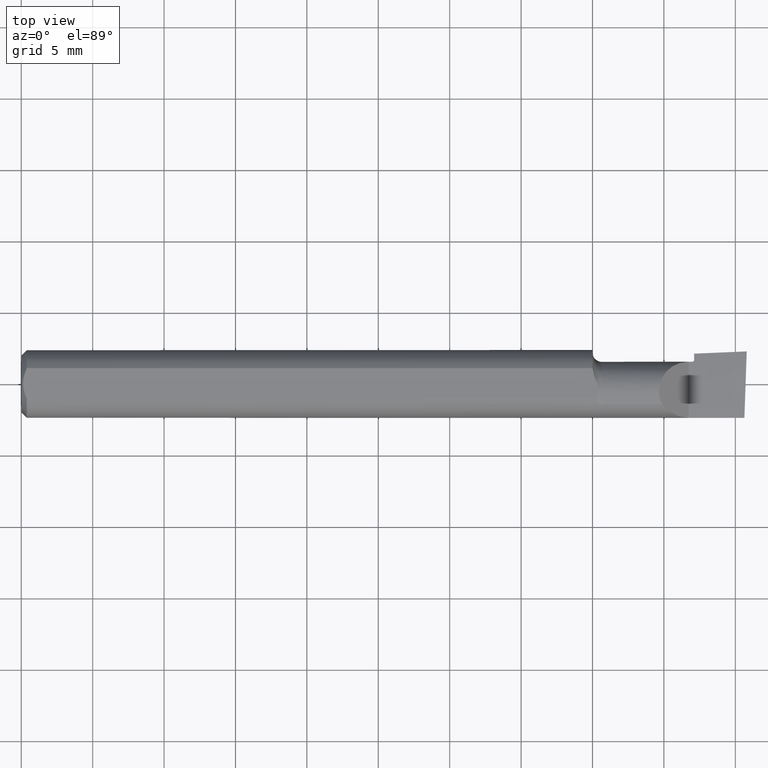
[diagram: clean part render]
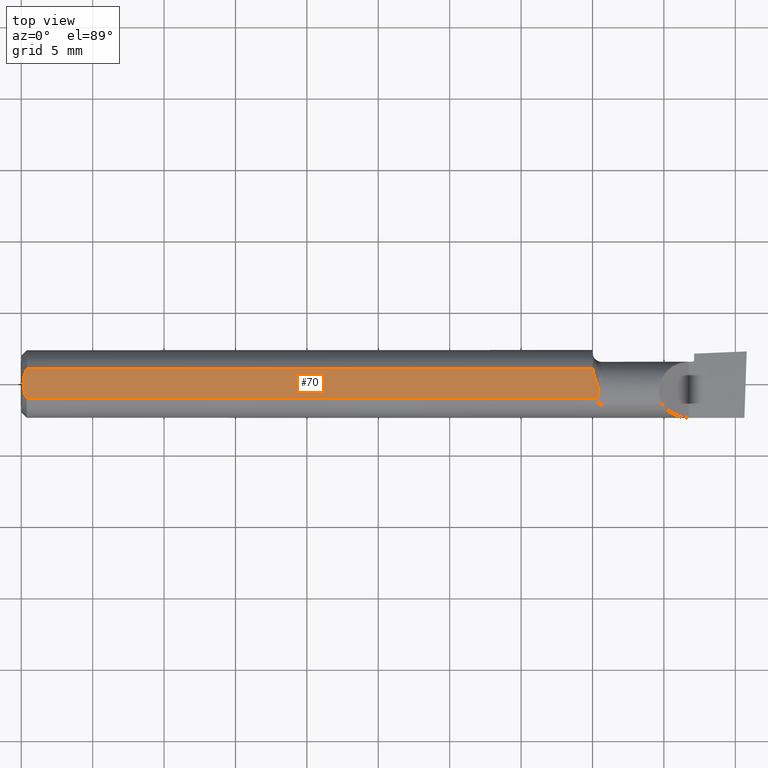
[diagram: same view with one face highlighted and labeled with its STEP entity id]
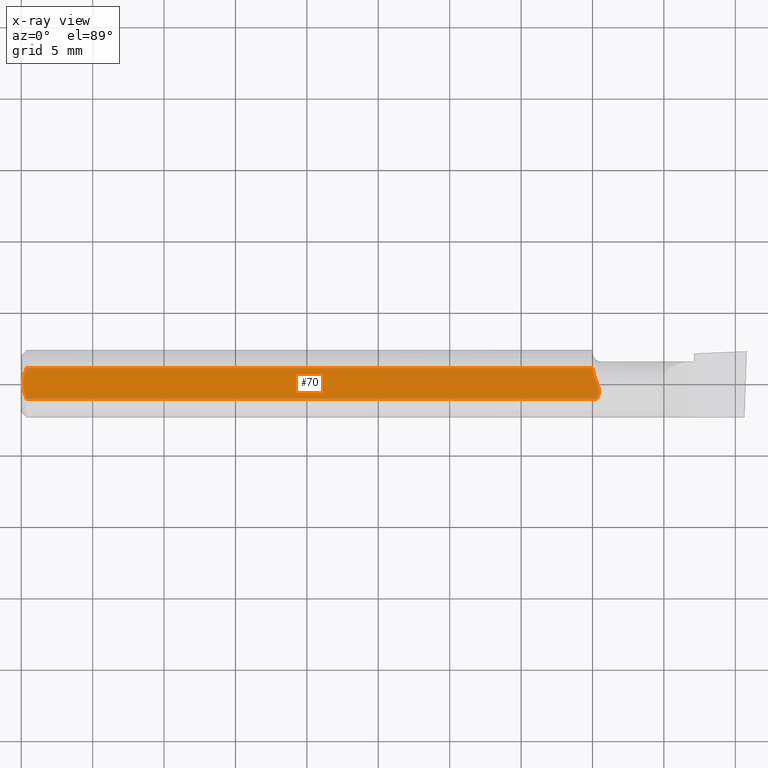
[diagram: x-ray of the same camera — body ghosted, the highlighted face saturated]
A machine part, top view. The second image highlights one B-rep face of the part: STEP entity #70.
The next image is the same camera in x-ray: the body ghosted, the highlighted face saturated — about 0% of this face is hidden behind the body in this view.
In plain terms, the highlighted planar face has unit normal (-0, 0, -1).
Its self-contained STEP definition (entity closure, byte-faithful):
#31 = CARTESIAN_POINT ( 'NONE',  ( 1.575142176526518778, 0.04209513036078768589, 0.08360000000000000764 ) ) ;
#53 = B_SPLINE_CURVE_WITH_KNOTS ( 'NONE', 3,
 ( #63, #598, #65, #445, #589, #73 ),
 .UNSPECIFIED., .F., .F.,
 ( 4, 2, 4 ),
 ( 0.001498230153270218050, 0.002046825164355170045, 0.002595420175440121824 ),
 .UNSPECIFIED. ) ;
#54 = DIRECTION ( 'NONE',  ( 1.000000000000000000, 0.000000000000000000, 0.000000000000000000 ) ) ;
#63 = CARTESIAN_POINT ( 'NONE',  ( 0.01500000000000024925, 0.04209513035969833505, 0.08360000000000004927 ) ) ;
#65 = CARTESIAN_POINT ( 'NONE',  ( 0.009483687754784102600, 0.02856776309113260789, 0.08360000000000000764 ) ) ;
#70 = ADVANCED_FACE ( 'NONE', ( #266 ), #351, .F. ) ;
#73 = CARTESIAN_POINT ( 'NONE',  ( 0.005000000000000217812, 1.023804700982173805E-17, 0.08360000000000000764 ) ) ;
#78 = CARTESIAN_POINT ( 'NONE',  ( 1.586717443774290803, -0.04209513035984616125, 0.08360000000000000764 ) ) ;
#98 = ORIENTED_EDGE ( 'NONE', *, *, #539, .T. ) ;
#110 = CARTESIAN_POINT ( 'NONE',  ( 0.01499999999997154825, -0.04209513035984145668, 0.08360000000000000764 ) ) ;
#133 = CARTESIAN_POINT ( 'NONE',  ( 0.01500000000000024925, 0.04209513035969833505, 0.08360000000000004927 ) ) ;
#147 = VERTEX_POINT ( 'NONE', #420 ) ;
#162 = VECTOR ( 'NONE', #54, 39.37007874015748143 ) ;
#174 = CARTESIAN_POINT ( 'NONE',  ( 1.592368946907285476, -0.02449212022604190311, 0.08360000000000003539 ) ) ;
#196 = VERTEX_POINT ( 'NONE', #133 ) ;
#199 = ORIENTED_EDGE ( 'NONE', *, *, #385, .F. ) ;
#217 = DIRECTION ( 'NONE',  ( -1.000000000000000000, 0.000000000000000000, 0.000000000000000000 ) ) ;
#219 = B_SPLINE_CURVE_WITH_KNOTS ( 'NONE', 3,
 ( #427, #581, #286, #482, #628, #332 ),
 .UNSPECIFIED., .F., .F.,
 ( 4, 2, 4 ),
 ( 0.002595420175440121824, 0.003143963582281870776, 0.003692506989123619295 ),
 .UNSPECIFIED. ) ;
#227 = CARTESIAN_POINT ( 'NONE',  ( 1.581312814023121849, 0.01393385481374755965, 0.08360000000000000764 ) ) ;
#244 = VERTEX_POINT ( 'NONE', #465 ) ;
#266 = FACE_OUTER_BOUND ( 'NONE', #483, .T. ) ;
#276 = VECTOR ( 'NONE', #292, 39.37007874015748143 ) ;
#280 = EDGE_CURVE ( 'NONE', #457, #495, #509, .T. ) ;
#286 = CARTESIAN_POINT ( 'NONE',  ( 0.005981945000908654025, -0.01453549720624409958, 0.08360000000000000764 ) ) ;
#290 = LINE ( 'NONE', #336, #162 ) ;
#292 = DIRECTION ( 'NONE',  ( -1.000000000000000000, -0.000000000000000000, -0.000000000000000000 ) ) ;
#303 = DIRECTION ( 'NONE',  ( -0.000000000000000000, 0.000000000000000000, -1.000000000000000000 ) ) ;
#332 = CARTESIAN_POINT ( 'NONE',  ( 0.01499999999997154825, -0.04209513035984145668, 0.08360000000000000764 ) ) ;
#336 = CARTESIAN_POINT ( 'NONE',  ( 2.000000000000000000, 0.04209513035969836975, 0.08360000000000000764 ) ) ;
#351 = PLANE ( 'NONE',  #392 ) ;
#363 = EDGE_CURVE ( 'NONE', #147, #495, #219, .T. ) ;
#385 = EDGE_CURVE ( 'NONE', #196, #244, #290, .T. ) ;
#392 = AXIS2_PLACEMENT_3D ( 'NONE', #544, #303, #217 ) ;
#415 = CARTESIAN_POINT ( 'NONE',  ( 1.589277391620196545, -0.006451795069408293101, 0.08360000000000003539 ) ) ;
#420 = CARTESIAN_POINT ( 'NONE',  ( 0.005000000000000217812, 1.023804700982173805E-17, 0.08360000000000000764 ) ) ;
#427 = CARTESIAN_POINT ( 'NONE',  ( 0.005000000000000217812, 1.023804700982173805E-17, 0.08360000000000000764 ) ) ;
#428 = ORIENTED_EDGE ( 'NONE', *, *, #280, .F. ) ;
#445 = CARTESIAN_POINT ( 'NONE',  ( 0.005976064474242861677, 0.01450833282979354169, 0.08359999999999997988 ) ) ;
#457 = VERTEX_POINT ( 'NONE', #591 ) ;
#458 = CARTESIAN_POINT ( 'NONE',  ( 1.591579426143966858, -0.02814343689618108157, 0.08360000000000000764 ) ) ;
#464 = CARTESIAN_POINT ( 'NONE',  ( 1.589402513546925189, -0.03521055180197243256, 0.08360000000000003539 ) ) ;
#465 = CARTESIAN_POINT ( 'NONE',  ( 1.575142176526518778, 0.04209513036078768589, 0.08360000000000000764 ) ) ;
#477 = ORIENTED_EDGE ( 'NONE', *, *, #363, .T. ) ;
#482 = CARTESIAN_POINT ( 'NONE',  ( 0.009483685532750397995, -0.02856415438847177343, 0.08359999999999997988 ) ) ;
#483 = EDGE_LOOP ( 'NONE', ( #612, #199, #98, #477, #428 ) ) ;
#495 = VERTEX_POINT ( 'NONE', #110 ) ;
#509 = LINE ( 'NONE', #528, #276 ) ;
#514 = CARTESIAN_POINT ( 'NONE',  ( 1.591487215486386830, -0.01349519822107818866, 0.08360000000000003539 ) ) ;
#528 = CARTESIAN_POINT ( 'NONE',  ( 2.000000000000000000, -0.04209513035969836975, 0.08360000000000000764 ) ) ;
#539 = EDGE_CURVE ( 'NONE', #196, #147, #53, .T. ) ;
#544 = CARTESIAN_POINT ( 'NONE',  ( 0.000000000000000000, 0.04793338999999999933, 0.08360000000000000764 ) ) ;
#556 = CARTESIAN_POINT ( 'NONE',  ( 1.587908078088387631, -0.002953318044166694089, 0.08360000000000003539 ) ) ;
#568 = CARTESIAN_POINT ( 'NONE',  ( 1.588060328464885096, -0.03865296673493586604, 0.08360000000000000764 ) ) ;
#569 = EDGE_CURVE ( 'NONE', #244, #457, #627, .T. ) ;
#581 = CARTESIAN_POINT ( 'NONE',  ( 0.005000000000000208271, -0.007340015043780888718, 0.08360000000000000764 ) ) ;
#589 = CARTESIAN_POINT ( 'NONE',  ( 0.005000000000000212608, 0.007340705555993274310, 0.08360000000000000764 ) ) ;
#591 = CARTESIAN_POINT ( 'NONE',  ( 1.586717443774290803, -0.04209513035984616125, 0.08360000000000000764 ) ) ;
#598 = CARTESIAN_POINT ( 'NONE',  ( 0.01203159747439047286, 0.03549478314559913888, 0.08360000000000000764 ) ) ;
#605 = CARTESIAN_POINT ( 'NONE',  ( 1.576075746555042123, 0.02762621477535017953, 0.08360000000000000764 ) ) ;
#609 = CARTESIAN_POINT ( 'NONE',  ( 1.592325187580201584, -0.01718587150066108390, 0.08360000000000000764 ) ) ;
#612 = ORIENTED_EDGE ( 'NONE', *, *, #569, .F. ) ;
#627 = B_SPLINE_CURVE_WITH_KNOTS ( 'NONE', 3,
 ( #31, #605, #227, #556, #415, #514, #609, #174, #458, #464, #568, #78 ),
 .UNSPECIFIED., .F., .F.,
 ( 4, 2, 2, 2, 2, 4 ),
 ( 0.01092621138090844185, 0.01205121053081308242, 0.01233246031828924907, 0.01261371010576541572, 0.01289495989324158237, 0.01317620968071774729 ),
 .UNSPECIFIED. ) ;
#628 = CARTESIAN_POINT ( 'NONE',  ( 0.01202468825749133767, -0.03547942025930518606, 0.08360000000000000764 ) ) ;